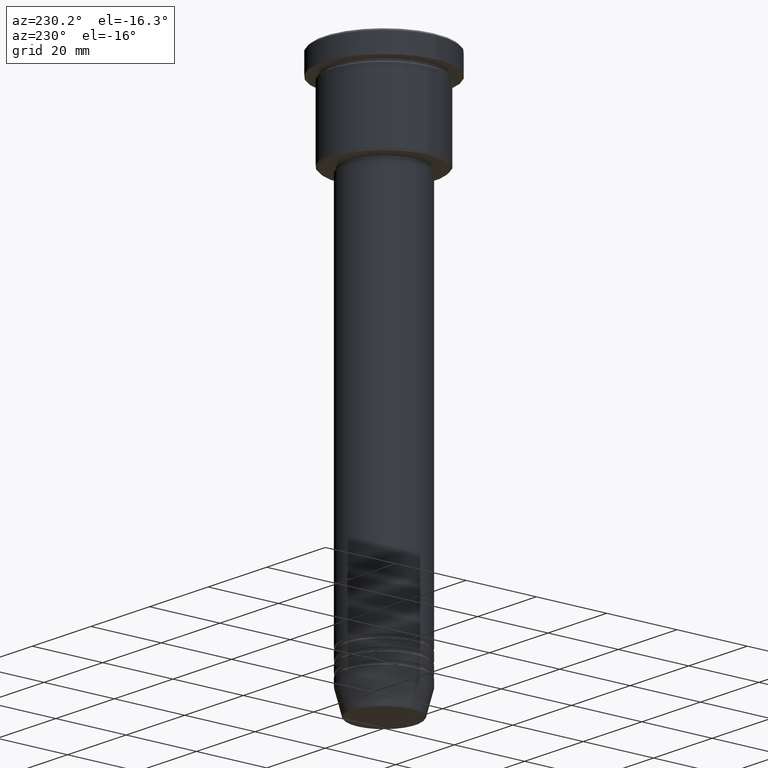
[diagram: clean part render]
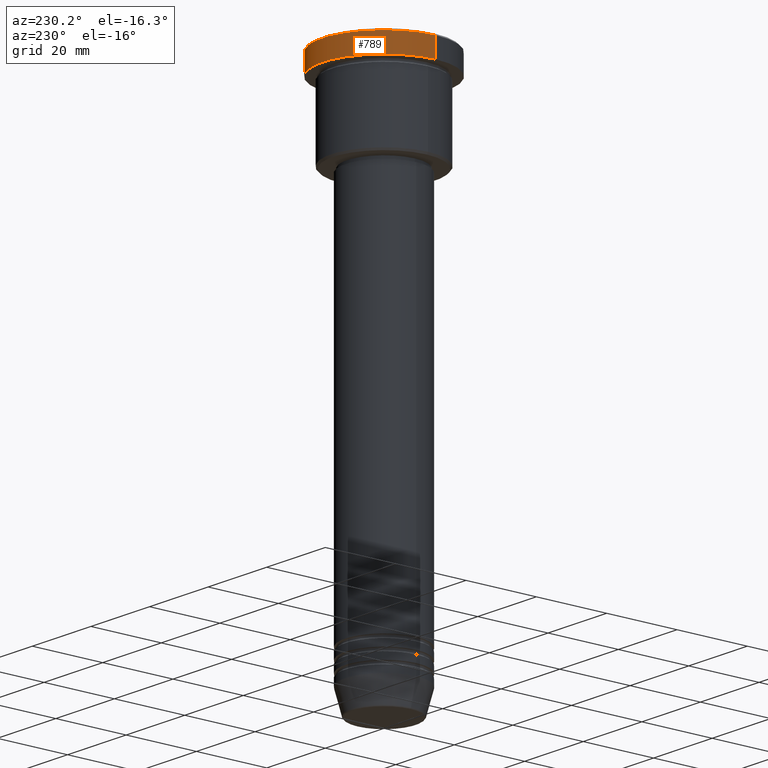
[diagram: same view with one face highlighted and labeled with its STEP entity id]
A machine part, auxiliary view. The second image highlights one B-rep face of the part: STEP entity #789.
In plain terms, the highlighted cylindrical surface (partial cylindrical patch) has radius 17.5 mm, axis along (-0, -0, 1).
Its self-contained STEP definition (entity closure, byte-faithful):
#24 = CYLINDRICAL_SURFACE ( 'NONE', #215, 17.50000000000000000 ) ;
#61 = VERTEX_POINT ( 'NONE', #490 ) ;
#65 = DIRECTION ( 'NONE',  ( -0.000000000000000000, -0.000000000000000000, 1.000000000000000000 ) ) ;
#71 = DIRECTION ( 'NONE',  ( -0.000000000000000000, -0.000000000000000000, 1.000000000000000000 ) ) ;
#129 = DIRECTION ( 'NONE',  ( 1.000000000000000000, 0.000000000000000000, 0.000000000000000000 ) ) ;
#143 = DIRECTION ( 'NONE',  ( -0.000000000000000000, -0.000000000000000000, 1.000000000000000000 ) ) ;
#164 = EDGE_LOOP ( 'NONE', ( #662, #535, #228, #277 ) ) ;
#176 = VECTOR ( 'NONE', #71, 1000.000000000000000 ) ;
#215 = AXIS2_PLACEMENT_3D ( 'NONE', #375, #1044, #129 ) ;
#228 = ORIENTED_EDGE ( 'NONE', *, *, #280, .T. ) ;
#239 = DIRECTION ( 'NONE',  ( 1.000000000000000000, 0.000000000000000000, 0.000000000000000000 ) ) ;
#277 = ORIENTED_EDGE ( 'NONE', *, *, #480, .F. ) ;
#280 = EDGE_CURVE ( 'NONE', #61, #1007, #914, .T. ) ;
#323 = LINE ( 'NONE', #704, #611 ) ;
#335 = VERTEX_POINT ( 'NONE', #856 ) ;
#351 = DIRECTION ( 'NONE',  ( 1.000000000000000000, 0.000000000000000000, 0.000000000000000000 ) ) ;
#375 = CARTESIAN_POINT ( 'NONE',  ( 0.000000000000000000, 0.000000000000000000, 0.000000000000000000 ) ) ;
#443 = DIRECTION ( 'NONE',  ( 0.000000000000000000, 0.000000000000000000, -1.000000000000000000 ) ) ;
#480 = EDGE_CURVE ( 'NONE', #552, #1007, #1161, .T. ) ;
#485 = EDGE_CURVE ( 'NONE', #335, #61, #323, .T. ) ;
#490 = CARTESIAN_POINT ( 'NONE',  ( -17.50000000000000000, 2.143131898507868248E-15, -0.5000000000000143219 ) ) ;
#535 = ORIENTED_EDGE ( 'NONE', *, *, #485, .T. ) ;
#540 = EDGE_CURVE ( 'NONE', #552, #335, #553, .T. ) ;
#552 = VERTEX_POINT ( 'NONE', #875 ) ;
#553 = CIRCLE ( 'NONE', #668, 17.50000000000000000 ) ;
#611 = VECTOR ( 'NONE', #65, 1000.000000000000000 ) ;
#662 = ORIENTED_EDGE ( 'NONE', *, *, #540, .T. ) ;
#668 = AXIS2_PLACEMENT_3D ( 'NONE', #893, #143, #239 ) ;
#704 = CARTESIAN_POINT ( 'NONE',  ( -17.50000000000000000, 2.143131898507868248E-15, 0.000000000000000000 ) ) ;
#789 = ADVANCED_FACE ( 'NONE', ( #1028 ), #24, .T. ) ;
#856 = CARTESIAN_POINT ( 'NONE',  ( -17.50000000000000000, 2.143131898507868248E-15, -5.999999999999995559 ) ) ;
#875 = CARTESIAN_POINT ( 'NONE',  ( 17.50000000000000000, 0.000000000000000000, -5.999999999999995559 ) ) ;
#893 = CARTESIAN_POINT ( 'NONE',  ( 0.000000000000000000, 0.000000000000000000, -5.999999999999995559 ) ) ;
#912 = CARTESIAN_POINT ( 'NONE',  ( 17.50000000000000000, 0.000000000000000000, -0.5000000000000143219 ) ) ;
#914 = CIRCLE ( 'NONE', #978, 17.50000000000000000 ) ;
#978 = AXIS2_PLACEMENT_3D ( 'NONE', #992, #443, #351 ) ;
#992 = CARTESIAN_POINT ( 'NONE',  ( 0.000000000000000000, 0.000000000000000000, -0.5000000000000143219 ) ) ;
#1007 = VERTEX_POINT ( 'NONE', #912 ) ;
#1028 = FACE_OUTER_BOUND ( 'NONE', #164, .T. ) ;
#1044 = DIRECTION ( 'NONE',  ( -0.000000000000000000, -0.000000000000000000, 1.000000000000000000 ) ) ;
#1069 = CARTESIAN_POINT ( 'NONE',  ( 17.50000000000000000, 0.000000000000000000, 0.000000000000000000 ) ) ;
#1161 = LINE ( 'NONE', #1069, #176 ) ;